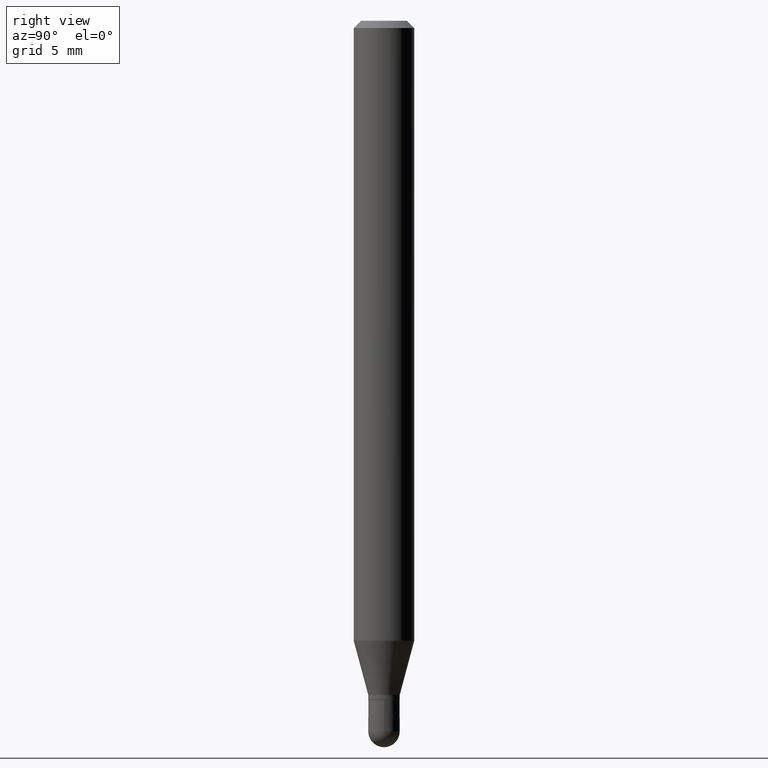
[diagram: clean part render]
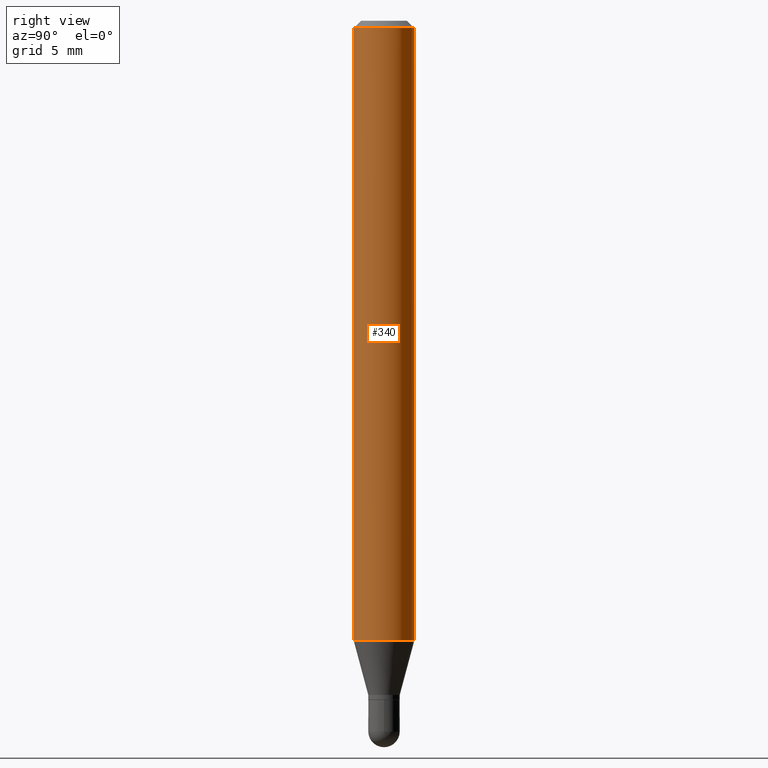
[diagram: same view with one face highlighted and labeled with its STEP entity id]
A machine part, right view. The second image highlights one B-rep face of the part: STEP entity #340.
In plain terms, the highlighted cylindrical surface (edge-blend (fillet) strip) has radius 1.5875 mm, axis along (-0, 0, 1).
Its self-contained STEP definition (entity closure, byte-faithful):
#7 = VECTOR ( 'NONE', #508, 39.37007874015748143 ) ;
#35 = CARTESIAN_POINT ( 'NONE',  ( 3.130237711891426451E-29, -4.469311292677210707E-15, -1.280038475772935058 ) ) ;
#40 = EDGE_LOOP ( 'NONE', ( #257, #302, #81, #183 ) ) ;
#51 = DIRECTION ( 'NONE',  ( -2.445424704910742757E-29, 3.491544494378166105E-15, 1.000000000000000000 ) ) ;
#79 = LINE ( 'NONE', #244, #375 ) ;
#81 = ORIENTED_EDGE ( 'NONE', *, *, #489, .F. ) ;
#92 = VERTEX_POINT ( 'NONE', #107 ) ;
#101 = EDGE_CURVE ( 'NONE', #92, #151, #193, .T. ) ;
#107 = CARTESIAN_POINT ( 'NONE',  ( -4.364351673553605094E-16, -0.06250000000000451028, -1.280038475772934836 ) ) ;
#125 = CARTESIAN_POINT ( 'NONE',  ( 4.440892098500935790E-16, 0.06249999999999548972, -1.280038475772935502 ) ) ;
#128 = CYLINDRICAL_SURFACE ( 'NONE', #446, 0.06250000000000000000 ) ;
#137 = FACE_OUTER_BOUND ( 'NONE', #40, .T. ) ;
#151 = VERTEX_POINT ( 'NONE', #283 ) ;
#161 = EDGE_CURVE ( 'NONE', #92, #293, #198, .T. ) ;
#166 = EDGE_CURVE ( 'NONE', #293, #331, #79, .T. ) ;
#183 = ORIENTED_EDGE ( 'NONE', *, *, #101, .F. ) ;
#188 = CARTESIAN_POINT ( 'NONE',  ( 3.668137057366194728E-31, -5.237316741567363887E-17, -0.01500000000000032904 ) ) ;
#193 = LINE ( 'NONE', #306, #7 ) ;
#198 = CIRCLE ( 'NONE', #264, 0.06250000000000000000 ) ;
#220 = CARTESIAN_POINT ( 'NONE',  ( 4.440892098500940720E-16, 0.06249999999999993755, -0.01500000000000054588 ) ) ;
#228 = DIRECTION ( 'NONE',  ( -6.982962677686265922E-15, -1.000000000000000000, 3.483106191921935554E-15 ) ) ;
#244 = CARTESIAN_POINT ( 'NONE',  ( 4.440892098500625669E-16, 0.06250000000000000000, -2.182215308986353569E-16 ) ) ;
#249 = CIRCLE ( 'NONE', #354, 0.06250000000000000000 ) ;
#257 = ORIENTED_EDGE ( 'NONE', *, *, #161, .T. ) ;
#264 = AXIS2_PLACEMENT_3D ( 'NONE', #35, #330, #284 ) ;
#283 = CARTESIAN_POINT ( 'NONE',  ( -4.364351673553912750E-16, -0.06250000000000005551, -0.01500000000000011047 ) ) ;
#284 = DIRECTION ( 'NONE',  ( -6.982962677686265922E-15, -1.000000000000000000, 4.370956789862821150E-15 ) ) ;
#293 = VERTEX_POINT ( 'NONE', #125 ) ;
#302 = ORIENTED_EDGE ( 'NONE', *, *, #166, .T. ) ;
#306 = CARTESIAN_POINT ( 'NONE',  ( -4.364351673553916201E-16, -0.06250000000000000000, 2.182215308986353569E-16 ) ) ;
#330 = DIRECTION ( 'NONE',  ( -2.445424704910742757E-29, 3.491544494378166105E-15, 1.000000000000000000 ) ) ;
#331 = VERTEX_POINT ( 'NONE', #220 ) ;
#340 = ADVANCED_FACE ( 'NONE', ( #137 ), #128, .T. ) ;
#354 = AXIS2_PLACEMENT_3D ( 'NONE', #188, #461, #228 ) ;
#375 = VECTOR ( 'NONE', #444, 39.37007874015748143 ) ;
#444 = DIRECTION ( 'NONE',  ( -2.445424704910742757E-29, 3.491544494378165710E-15, 1.000000000000000000 ) ) ;
#446 = AXIS2_PLACEMENT_3D ( 'NONE', #490, #51, #491 ) ;
#461 = DIRECTION ( 'NONE',  ( -2.445424704910742757E-29, 3.491544494378166105E-15, 1.000000000000000000 ) ) ;
#489 = EDGE_CURVE ( 'NONE', #151, #331, #249, .T. ) ;
#490 = CARTESIAN_POINT ( 'NONE',  ( 0.000000000000000000, 0.000000000000000000, 0.000000000000000000 ) ) ;
#491 = DIRECTION ( 'NONE',  ( -6.982962677686265922E-15, -1.000000000000000000, 3.491544494378165710E-15 ) ) ;
#508 = DIRECTION ( 'NONE',  ( -2.445424704910742757E-29, 3.491544494378165710E-15, 1.000000000000000000 ) ) ;